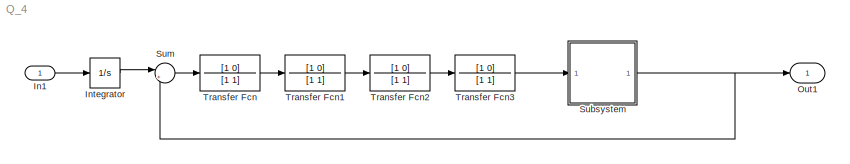
MODEL Q_4
KIND model
BLOCK [Inport] In1
  IconDisplay = Port number
  SID = 27
BLOCK [Integrator] Integrator
  Ports = [1, 1]
  SID = 1
BLOCK [Outport] Out1
  IconDisplay = Port number
  SID = 13
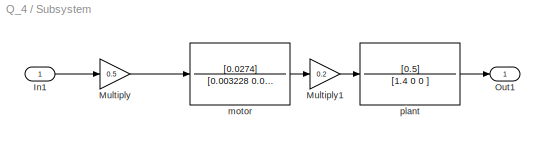
BLOCK [SubSystem] Subsystem
  Ports = [1, 1]
  RequestExecContextInheritance = off
  SID = 32
BLOCK [Inport] Subsystem/In1
  IconDisplay = Port number
  SID = 33
BLOCK [Gain] Subsystem/Multiply
  Gain = 0.5
  OutDataTypeStr = Inherit: Inherit via internal rule
  ParamDataTypeStr = Inherit: Inherit via internal rule
  SID = 28
  SaturateOnIntegerOverflow = off
BLOCK [Gain] Subsystem/Multiply1
  Gain = 0.2
  OutDataTypeStr = Inherit: Inherit via internal rule
  ParamDataTypeStr = Inherit: Inherit via internal rule
  SID = 30
  SaturateOnIntegerOverflow = off
BLOCK [Outport] Subsystem/Out1
  IconDisplay = Port number
  SID = 34
BLOCK [TransferFcn] Subsystem/motor
  Denominator = [0.003228 0.003508 0]
  Numerator = [0.0274]
  SID = 31
BLOCK [TransferFcn] Subsystem/plant
  Denominator = [1.4 0 0 ]
  Numerator = [0.5]
  SID = 29
BLOCK [Sum] Sum
  IconShape = round
  InputSameDT = off
  Inputs = |+-
  OutDataTypeStr = Inherit: Inherit via internal rule
  Ports = [2, 1]
  SID = 7
  SaturateOnIntegerOverflow = off
BLOCK [TransferFcn] Transfer Fcn
  Denominator = [1 1]
  Numerator = [1 0]
  SID = 9
BLOCK [TransferFcn] Transfer Fcn1
  Denominator = [1 1]
  Numerator = [1 0]
  SID = 10
BLOCK [TransferFcn] Transfer Fcn2
  Denominator = [1 1]
  Numerator = [1 0]
  SID = 11
BLOCK [TransferFcn] Transfer Fcn3
  Denominator = [1 1]
  Numerator = [1 0]
  SID = 12
LINE In1:1 -> Integrator:1
LINE Integrator:1 -> Sum:1
LINE Subsystem/In1:1 -> Subsystem/Multiply:1
LINE Subsystem/Multiply1:1 -> Subsystem/plant:1
LINE Subsystem/Multiply:1 -> Subsystem/motor:1
LINE Subsystem/motor:1 -> Subsystem/Multiply1:1
LINE Subsystem/plant:1 -> Subsystem/Out1:1
NET Subsystem:1 -> Out1:1, Sum:2
LINE Sum:1 -> Transfer Fcn:1
LINE Transfer Fcn1:1 -> Transfer Fcn2:1
LINE Transfer Fcn2:1 -> Transfer Fcn3:1
LINE Transfer Fcn3:1 -> Subsystem:1
LINE Transfer Fcn:1 -> Transfer Fcn1:1
note: NET lines group one-source signal fan-out (src -> all destinations, sorted); 1:1 wires keep LINE
